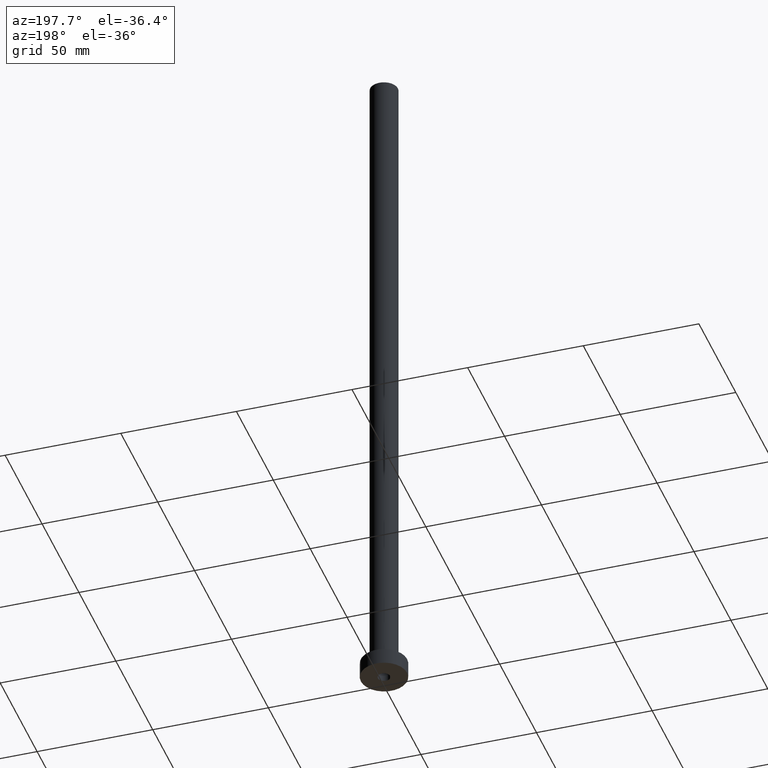
[diagram: clean part render]
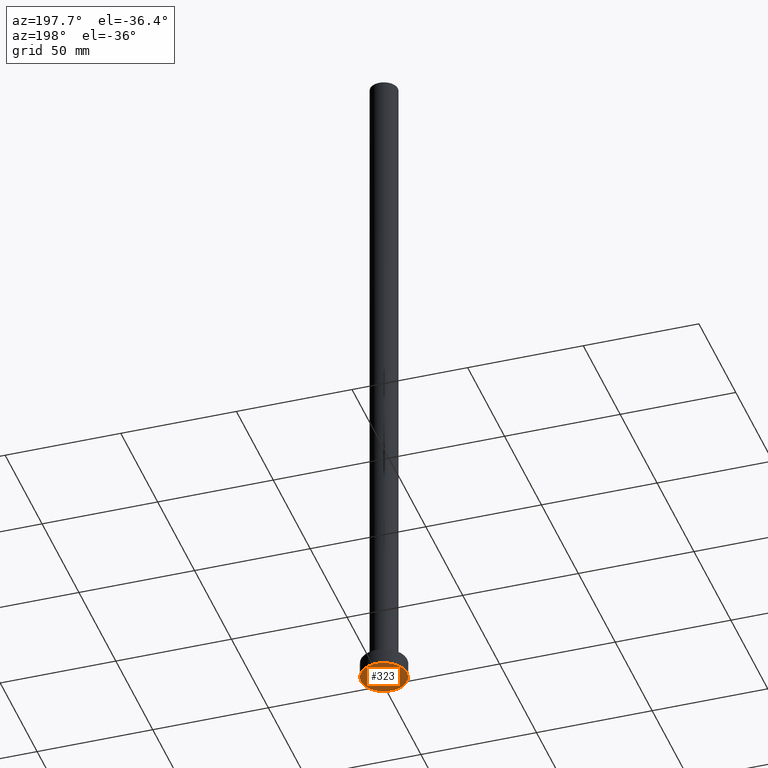
[diagram: same view with one face highlighted and labeled with its STEP entity id]
A machine part, auxiliary view. The second image highlights one B-rep face of the part: STEP entity #323.
In plain terms, the highlighted planar face has unit normal (0, 0, 1).
Its self-contained STEP definition (entity closure, byte-faithful):
#12 = EDGE_LOOP ( 'NONE', ( #44, #411 ) ) ;
#13 = EDGE_CURVE ( 'NONE', #431, #332, #91, .T. ) ;
#16 = AXIS2_PLACEMENT_3D ( 'NONE', #446, #338, #93 ) ;
#20 = CARTESIAN_POINT ( 'NONE',  ( -2.649999999999999911, 0.000000000000000000, 0.000000000000000000 ) ) ;
#43 = AXIS2_PLACEMENT_3D ( 'NONE', #266, #86, #115 ) ;
#44 = ORIENTED_EDGE ( 'NONE', *, *, #13, .F. ) ;
#62 = CARTESIAN_POINT ( 'NONE',  ( 0.000000000000000000, 0.000000000000000000, 0.000000000000000000 ) ) ;
#70 = EDGE_LOOP ( 'NONE', ( #161, #128 ) ) ;
#77 = AXIS2_PLACEMENT_3D ( 'NONE', #269, #235, #307 ) ;
#86 = DIRECTION ( 'NONE',  ( 0.000000000000000000, 0.000000000000000000, 1.000000000000000000 ) ) ;
#91 = CIRCLE ( 'NONE', #77, 10.00000000000000000 ) ;
#93 = DIRECTION ( 'NONE',  ( 1.000000000000000000, 0.000000000000000000, 0.000000000000000000 ) ) ;
#102 = DIRECTION ( 'NONE',  ( -0.000000000000000000, -0.000000000000000000, -1.000000000000000000 ) ) ;
#115 = DIRECTION ( 'NONE',  ( 1.000000000000000000, 0.000000000000000000, -0.000000000000000000 ) ) ;
#128 = ORIENTED_EDGE ( 'NONE', *, *, #363, .F. ) ;
#129 = CIRCLE ( 'NONE', #151, 10.00000000000000000 ) ;
#139 = CARTESIAN_POINT ( 'NONE',  ( 0.000000000000000000, 0.000000000000000000, 0.000000000000000000 ) ) ;
#146 = FACE_BOUND ( 'NONE', #70, .T. ) ;
#151 = AXIS2_PLACEMENT_3D ( 'NONE', #139, #283, #424 ) ;
#156 = CIRCLE ( 'NONE', #16, 2.649999999999999911 ) ;
#161 = ORIENTED_EDGE ( 'NONE', *, *, #347, .F. ) ;
#166 = DIRECTION ( 'NONE',  ( 1.000000000000000000, 0.000000000000000000, 0.000000000000000000 ) ) ;
#213 = EDGE_CURVE ( 'NONE', #332, #431, #129, .T. ) ;
#231 = CARTESIAN_POINT ( 'NONE',  ( 10.00000000000000000, 1.224646799147353256E-15, 0.000000000000000000 ) ) ;
#235 = DIRECTION ( 'NONE',  ( 0.000000000000000000, 0.000000000000000000, 1.000000000000000000 ) ) ;
#250 = VERTEX_POINT ( 'NONE', #406 ) ;
#266 = CARTESIAN_POINT ( 'NONE',  ( 0.000000000000000000, 0.000000000000000000, 0.000000000000000000 ) ) ;
#269 = CARTESIAN_POINT ( 'NONE',  ( 0.000000000000000000, 0.000000000000000000, 0.000000000000000000 ) ) ;
#283 = DIRECTION ( 'NONE',  ( 0.000000000000000000, 0.000000000000000000, 1.000000000000000000 ) ) ;
#307 = DIRECTION ( 'NONE',  ( 1.000000000000000000, 0.000000000000000000, 0.000000000000000000 ) ) ;
#310 = FACE_OUTER_BOUND ( 'NONE', #12, .T. ) ;
#319 = CARTESIAN_POINT ( 'NONE',  ( -10.00000000000000000, 0.000000000000000000, 0.000000000000000000 ) ) ;
#323 = ADVANCED_FACE ( 'NONE', ( #146, #310 ), #434, .F. ) ;
#332 = VERTEX_POINT ( 'NONE', #231 ) ;
#338 = DIRECTION ( 'NONE',  ( -0.000000000000000000, -0.000000000000000000, -1.000000000000000000 ) ) ;
#345 = CIRCLE ( 'NONE', #398, 2.649999999999999911 ) ;
#347 = EDGE_CURVE ( 'NONE', #353, #250, #156, .T. ) ;
#353 = VERTEX_POINT ( 'NONE', #20 ) ;
#363 = EDGE_CURVE ( 'NONE', #250, #353, #345, .T. ) ;
#398 = AXIS2_PLACEMENT_3D ( 'NONE', #62, #102, #166 ) ;
#406 = CARTESIAN_POINT ( 'NONE',  ( 2.649999999999999911, 3.245314017740485962E-16, 0.000000000000000000 ) ) ;
#411 = ORIENTED_EDGE ( 'NONE', *, *, #213, .F. ) ;
#424 = DIRECTION ( 'NONE',  ( 1.000000000000000000, 0.000000000000000000, 0.000000000000000000 ) ) ;
#431 = VERTEX_POINT ( 'NONE', #319 ) ;
#434 = PLANE ( 'NONE',  #43 ) ;
#446 = CARTESIAN_POINT ( 'NONE',  ( 0.000000000000000000, 0.000000000000000000, 0.000000000000000000 ) ) ;